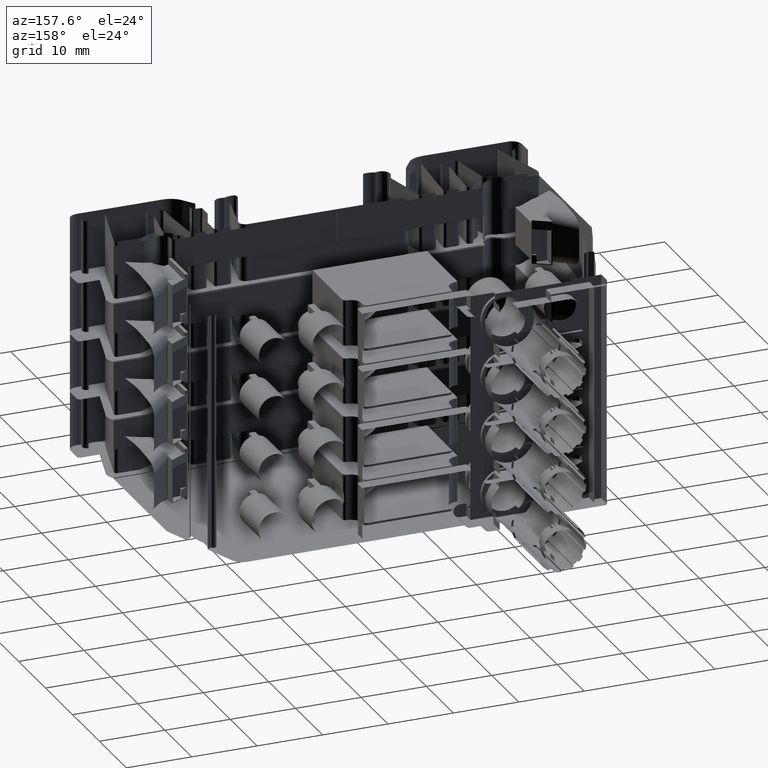
[diagram: clean part render]
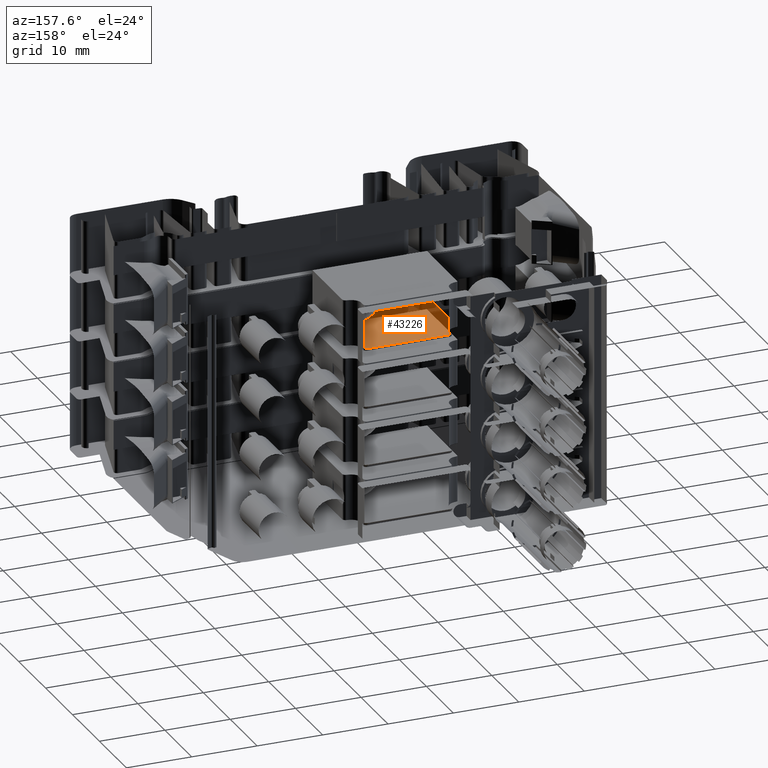
[diagram: same view with one face highlighted and labeled with its STEP entity id]
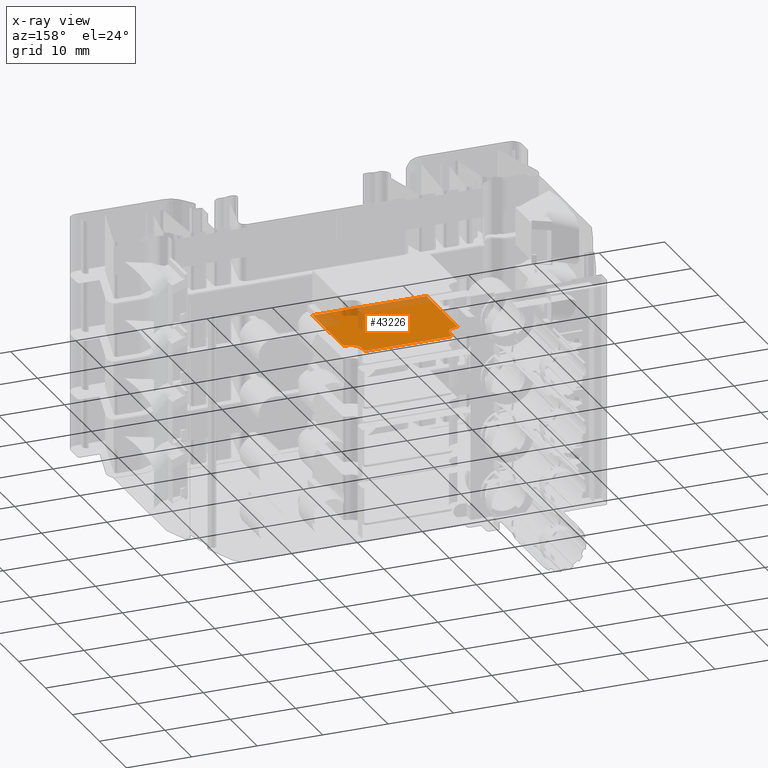
[diagram: x-ray of the same camera — body ghosted, the highlighted face saturated]
A machine part, auxiliary view. The second image highlights one B-rep face of the part: STEP entity #43226.
The next image is the same camera in x-ray: the body ghosted, the highlighted face saturated — about 19% of this face is hidden behind the body in this view.
In plain terms, the highlighted planar face has unit normal (0, 0, -1).
Its self-contained STEP definition (entity closure, byte-faithful):
#780 = CARTESIAN_POINT ( 'NONE',  ( 478.4752094327940900, 140.2842543253054000, 27.90000000000000200 ) ) ;
#4862 = CARTESIAN_POINT ( 'NONE',  ( 478.9752094327940300, 139.1048603657970100, 27.90000000000000200 ) ) ;
#4890 = CARTESIAN_POINT ( 'NONE',  ( 465.9752094327940300, 140.2842543253054000, 27.90000000000000200 ) ) ;
#5010 = CARTESIAN_POINT ( 'NONE',  ( 465.4752094327940300, 139.1048603657970100, 27.90000000000000200 ) ) ;
#5015 = CARTESIAN_POINT ( 'NONE',  ( 478.9752094327940300, 139.7842543253054000, 27.90000000000000200 ) ) ;
#18357 = EDGE_LOOP ( 'NONE', ( #18800, #18789, #18738, #18780, #18777, #18787, #18718, #18788, #18792, #18744, #18689, #18678, #18755, #18790 ) ) ;
#18678 = ORIENTED_EDGE ( 'NONE', *, *, #88631, .T. ) ;
#18689 = ORIENTED_EDGE ( 'NONE', *, *, #88177, .F. ) ;
#18718 = ORIENTED_EDGE ( 'NONE', *, *, #88108, .F. ) ;
#18738 = ORIENTED_EDGE ( 'NONE', *, *, #88643, .T. ) ;
#18744 = ORIENTED_EDGE ( 'NONE', *, *, #88127, .T. ) ;
#18755 = ORIENTED_EDGE ( 'NONE', *, *, #88662, .T. ) ;
#18777 = ORIENTED_EDGE ( 'NONE', *, *, #88623, .T. ) ;
#18780 = ORIENTED_EDGE ( 'NONE', *, *, #88627, .F. ) ;
#18787 = ORIENTED_EDGE ( 'NONE', *, *, #88638, .T. ) ;
#18788 = ORIENTED_EDGE ( 'NONE', *, *, #88095, .T. ) ;
#18789 = ORIENTED_EDGE ( 'NONE', *, *, #88651, .T. ) ;
#18790 = ORIENTED_EDGE ( 'NONE', *, *, #88644, .F. ) ;
#18792 = ORIENTED_EDGE ( 'NONE', *, *, #88096, .T. ) ;
#18800 = ORIENTED_EDGE ( 'NONE', *, *, #88639, .T. ) ;
#23241 = CARTESIAN_POINT ( 'NONE',  ( 478.4752094327940900, 140.2842543253054000, 27.90000000000000200 ) ) ;
#23248 = CARTESIAN_POINT ( 'NONE',  ( 478.5070820039424600, 140.2841866835779900, 27.90000000000000200 ) ) ;
#23257 = CARTESIAN_POINT ( 'NONE',  ( 478.8852223832403800, 140.0741690295757300, 27.90000000000000200 ) ) ;
#23259 = CARTESIAN_POINT ( 'NONE',  ( 478.9109002353936300, 140.0302949144943300, 27.89999999999999900 ) ) ;
#23269 = CARTESIAN_POINT ( 'NONE',  ( 478.5995549358398200, 140.2688025087876200, 27.89999999999999900 ) ) ;
#23271 = CARTESIAN_POINT ( 'NONE',  ( 478.8530725175934900, 140.1135503262722200, 27.90000000000000200 ) ) ;
#23272 = CARTESIAN_POINT ( 'NONE',  ( 478.5539923516515200, 140.2797477210987400, 27.89999999999999500 ) ) ;
#23274 = CARTESIAN_POINT ( 'NONE',  ( 478.7801434349750000, 140.1863224951517000, 27.90000000000000900 ) ) ;
#23277 = CARTESIAN_POINT ( 'NONE',  ( 478.9265805782749200, 140.0000471003544900, 27.89999999999999500 ) ) ;
#23278 = CARTESIAN_POINT ( 'NONE',  ( 478.9752094327940300, 139.7842543253054000, 27.90000000000000200 ) ) ;
#23279 = CARTESIAN_POINT ( 'NONE',  ( 478.9633714427415000, 139.9097051757504500, 27.90000000000000200 ) ) ;
#23284 = CARTESIAN_POINT ( 'NONE',  ( 478.9342866184711600, 139.9829508061703500, 27.90000000000000200 ) ) ;
#23285 = CARTESIAN_POINT ( 'NONE',  ( 478.6296304889609100, 140.2600598672841600, 27.89999999999999900 ) ) ;
#23306 = CARTESIAN_POINT ( 'NONE',  ( 478.6432849607784900, 140.2554525097892500, 27.90000000000000600 ) ) ;
#23307 = CARTESIAN_POINT ( 'NONE',  ( 478.7231440947607600, 140.2239323400261000, 27.90000000000000600 ) ) ;
#23317 = CARTESIAN_POINT ( 'NONE',  ( 478.9750733925643500, 139.8483560574900700, 27.89999999999999500 ) ) ;
#23564 = DIRECTION ( 'NONE',  ( 0.0000000000000000000, 1.000000000000000000, 0.0000000000000000000 ) ) ;
#23584 = LINE ( 'NONE', #23586, #74212 ) ;
#23586 = CARTESIAN_POINT ( 'NONE',  ( 478.9752094327940300, 137.2554713541223900, 27.90000000000000200 ) ) ;
#25276 = CARTESIAN_POINT ( 'NONE',  ( 464.7252094327940900, 137.8058222601203200, 27.90000000000000200 ) ) ;
#28341 = CARTESIAN_POINT ( 'NONE',  ( 465.4752094327940300, 139.7842543253054000, 27.90000000000000200 ) ) ;
#29662 = CARTESIAN_POINT ( 'NONE',  ( 465.4752770745214400, 139.8161268964363200, 27.90000000000000200 ) ) ;
#29701 = CARTESIAN_POINT ( 'NONE',  ( 465.4752094327940300, 139.7842543253054000, 27.90000000000000200 ) ) ;
#29732 = CARTESIAN_POINT ( 'NONE',  ( 465.4906612493118100, 139.9085998283270600, 27.89999999999999900 ) ) ;
#29741 = LINE ( 'NONE', #29770, #75768 ) ;
#29743 = CARTESIAN_POINT ( 'NONE',  ( 465.5731412629506300, 140.0891883274962900, 27.89999999999999500 ) ) ;
#29754 = CARTESIAN_POINT ( 'NONE',  ( 465.4797160370005100, 139.8630372441320700, 27.90000000000000200 ) ) ;
#29765 = CARTESIAN_POINT ( 'NONE',  ( 465.7765129519341900, 140.2433315109825000, 27.89999999999999900 ) ) ;
#29768 = CARTESIAN_POINT ( 'NONE',  ( 465.9752094327940300, 140.2842543253054000, 27.90000000000000200 ) ) ;
#29770 = CARTESIAN_POINT ( 'NONE',  ( 463.7252094327940300, 140.2842543253054000, 27.90000000000000200 ) ) ;
#29789 = DIRECTION ( 'NONE',  ( 1.000000000000000000, 0.0000000000000000000, 0.0000000000000000000 ) ) ;
#29794 = CARTESIAN_POINT ( 'NONE',  ( 465.9111077005886700, 140.2841182850758100, 27.90000000000000600 ) ) ;
#29800 = CARTESIAN_POINT ( 'NONE',  ( 465.4994038908153000, 139.9386753814568500, 27.90000000000000600 ) ) ;
#29807 = CARTESIAN_POINT ( 'NONE',  ( 465.7594166577434300, 140.2356254707820300, 27.89999999999999900 ) ) ;
#29816 = CARTESIAN_POINT ( 'NONE',  ( 465.6852947285211100, 140.1942672757429300, 27.90000000000000900 ) ) ;
#29817 = CARTESIAN_POINT ( 'NONE',  ( 465.7291688436031300, 140.2199451278981700, 27.90000000000000600 ) ) ;
#29821 = CARTESIAN_POINT ( 'NONE',  ( 465.6459134318257000, 140.1621174100998500, 27.89999999999999500 ) ) ;
#29823 = CARTESIAN_POINT ( 'NONE',  ( 465.5040112483151200, 139.9523298532932600, 27.89999999999999900 ) ) ;
#29824 = CARTESIAN_POINT ( 'NONE',  ( 465.8497585823283800, 140.2724163352528400, 27.90000000000000200 ) ) ;
#29831 = CARTESIAN_POINT ( 'NONE',  ( 465.5355314180526400, 140.0321889872587300, 27.89999999999999900 ) ) ;
#29872 = LINE ( 'NONE', #29933, #75727 ) ;
#29876 = DIRECTION ( 'NONE',  ( -0.0000000000000000000, -1.000000000000000000, 0.0000000000000000000 ) ) ;
#29933 = CARTESIAN_POINT ( 'NONE',  ( 465.4752094327940300, 137.2554713541223900, 27.90000000000000200 ) ) ;
#35326 = CARTESIAN_POINT ( 'NONE',  ( 464.4573169139337100, 137.6520726997566400, 27.90000000000000200 ) ) ;
#35356 = CARTESIAN_POINT ( 'NONE',  ( 464.1693169139337000, 137.5642994215256500, 27.90000000000000200 ) ) ;
#36684 = CARTESIAN_POINT ( 'NONE',  ( 463.8612094327940000, 137.5425024254273600, 27.90000000000000200 ) ) ;
#43226 = ADVANCED_FACE ( 'NONE', ( #48739 ), #48749, .T. ) ;
#44624 = AXIS2_PLACEMENT_3D ( 'NONE', #48751, #48731, #48722 ) ;
#48722 = DIRECTION ( 'NONE',  ( -1.000000000000000000, 0.0000000000000000000, -0.0000000000000000000 ) ) ;
#48731 = DIRECTION ( 'NONE',  ( 0.0000000000000000000, 0.0000000000000000000, -1.000000000000000000 ) ) ;
#48739 = FACE_OUTER_BOUND ( 'NONE', #18357, .T. ) ;
#48749 = PLANE ( 'NONE',  #44624 ) ;
#48751 = CARTESIAN_POINT ( 'NONE',  ( 462.4252094327940200, 119.1878730676890000, 27.90000000000000200 ) ) ;
#74212 = VECTOR ( 'NONE', #23564, 1000.000000000000000 ) ;
#75524 = VECTOR ( 'NONE', #83676, 1000.000000000000000 ) ;
#75527 = VECTOR ( 'NONE', #83710, 1000.000000000000000 ) ;
#75579 = VECTOR ( 'NONE', #83656, 1000.000000000000000 ) ;
#75727 = VECTOR ( 'NONE', #29876, 1000.000000000000000 ) ;
#75768 = VECTOR ( 'NONE', #29789, 1000.000000000000000 ) ;
#78160 = CARTESIAN_POINT ( 'NONE',  ( 481.0552094327940200, 126.0068965332545900, 27.89999999999999900 ) ) ;
#78169 = CARTESIAN_POINT ( 'NONE',  ( 479.7252094327940900, 137.8058222601203500, 27.90000000000000200 ) ) ;
#78179 = CARTESIAN_POINT ( 'NONE',  ( 480.5892094327941200, 137.5425024254273600, 27.90000000000000200 ) ) ;
#78182 = CARTESIAN_POINT ( 'NONE',  ( 481.0552094327940200, 137.0436597648619900, 27.90000000000000200 ) ) ;
#78238 = CARTESIAN_POINT ( 'NONE',  ( 463.8612094327940000, 137.5425024254273600, 27.90000000000000200 ) ) ;
#78243 = CARTESIAN_POINT ( 'NONE',  ( 463.5678849438149900, 126.0068965332545900, 27.89999999999999900 ) ) ;
#78246 = CARTESIAN_POINT ( 'NONE',  ( 463.5678849438149900, 137.4216262698789700, 27.90000000000000200 ) ) ;
#78288 = CARTESIAN_POINT ( 'NONE',  ( 464.7252094327940900, 137.8058222601203200, 27.90000000000000200 ) ) ;
#82888 = B_SPLINE_CURVE_WITH_KNOTS ( 'NONE', 3,
 ( #23241, #23248, #23272, #23269, #23285, #23306, #23307, #23274, #23271, #23257, #23259, #23277, #23284, #23279, #23317, #23278 ),
 .UNSPECIFIED., .F., .F.,
 ( 4, 1, 2, 2, 2, 1, 2, 2, 4 ),
 ( 0.0000000000000000000, 0.1250000000002766100, 0.1875000000003057800, 0.2500000000003349500, 0.5000000000003773600, 0.6250000000003270700, 0.6875000000002590200, 0.7500000000001909600, 1.000000000000000000 ),
 .UNSPECIFIED. ) ;
#82917 = B_SPLINE_CURVE_WITH_KNOTS ( 'NONE', 3,
 ( #29701, #29662, #29754, #29732, #29800, #29823, #29831, #29743, #29821, #29816, #29817, #29807, #29765, #29824, #29794, #29768 ),
 .UNSPECIFIED., .F., .F.,
 ( 4, 1, 2, 2, 2, 1, 2, 2, 4 ),
 ( 0.0000000000000000000, 0.1250000000001320900, 0.1875000000001435500, 0.2500000000001550400, 0.5000000000002207100, 0.6250000000002180500, 0.6875000000001885200, 0.7500000000001588700, 1.000000000000000000 ),
 .UNSPECIFIED. ) ;
#83183 = B_SPLINE_CURVE_WITH_KNOTS ( 'NONE', 3,
 ( #83631, #83607, #83602, #83615 ),
 .UNSPECIFIED., .F., .F.,
 ( 4, 4 ),
 ( 0.0000000000000000000, 1.000000000000000000 ),
 .UNSPECIFIED. ) ;
#83212 = B_SPLINE_CURVE_WITH_KNOTS ( 'NONE', 3,
 ( #83708, #83735, #83744, #83804 ),
 .UNSPECIFIED., .F., .F.,
 ( 4, 4 ),
 ( 0.0000000000000000000, 1.000000000000000000 ),
 .UNSPECIFIED. ) ;
#83231 = B_SPLINE_CURVE_WITH_KNOTS ( 'NONE', 3,
 ( #83588, #83628, #83618, #83603, #83636, #83590, #83616, #83605, #83629, #83630, #83619 ),
 .UNSPECIFIED., .F., .F.,
 ( 4, 2, 1, 2, 2, 4 ),
 ( 0.0000000000000000000, 0.4999999999998885300, 0.6249999999998995200, 0.6874999999999161800, 0.7499999999999329400, 1.000000000000000000 ),
 .UNSPECIFIED. ) ;
#83249 = B_SPLINE_CURVE_WITH_KNOTS ( 'NONE', 3,
 ( #83678, #83654, #83648, #83641, #83683, #83673, #83675, #83646, #83651, #83687, #83650 ),
 .UNSPECIFIED., .F., .F.,
 ( 4, 2, 1, 2, 2, 4 ),
 ( 0.0000000000000000000, 0.5000000000000605100, 0.6250000000000548500, 0.6875000000000278700, 0.7500000000000008900, 1.000000000000000000 ),
 .UNSPECIFIED. ) ;
#83296 = B_SPLINE_CURVE_WITH_KNOTS ( 'NONE', 3,
 ( #83658, #83662, #83663, #83681, #83684, #83665 ),
 .UNSPECIFIED., .F., .F.,
 ( 4, 2, 4 ),
 ( 0.0000000000000000000, 0.5000000000000000000, 1.000000000000000000 ),
 .UNSPECIFIED. ) ;
#83319 = B_SPLINE_CURVE_WITH_KNOTS ( 'NONE', 3,
 ( #36684, #35356, #35326, #25276 ),
 .UNSPECIFIED., .F., .F.,
 ( 4, 4 ),
 ( 0.0000000000000000000, 1.000000000000000000 ),
 .UNSPECIFIED. ) ;
#83588 = CARTESIAN_POINT ( 'NONE',  ( 478.9752094327940300, 139.1048603657970100, 27.90000000000000200 ) ) ;
#83590 = CARTESIAN_POINT ( 'NONE',  ( 479.3284949695582200, 138.1372513765059900, 27.90000000000000200 ) ) ;
#83602 = CARTESIAN_POINT ( 'NONE',  ( 463.6492316076626100, 137.4920736635516800, 27.90000000000000200 ) ) ;
#83603 = CARTESIAN_POINT ( 'NONE',  ( 479.2095609562226700, 138.2969823494639700, 27.89999999999999900 ) ) ;
#83605 = CARTESIAN_POINT ( 'NONE',  ( 479.3965333220133400, 138.0620456083562400, 27.90000000000001300 ) ) ;
#83607 = CARTESIAN_POINT ( 'NONE',  ( 463.7538475748430600, 137.5351848813220400, 27.90000000000000200 ) ) ;
#83615 = CARTESIAN_POINT ( 'NONE',  ( 463.5678849438149900, 137.4216262698789700, 27.90000000000000200 ) ) ;
#83616 = CARTESIAN_POINT ( 'NONE',  ( 479.3726075278178200, 138.0873179750536200, 27.90000000000000200 ) ) ;
#83618 = CARTESIAN_POINT ( 'NONE',  ( 479.0426128106966500, 138.5863724311293800, 27.90000000000000200 ) ) ;
#83619 = CARTESIAN_POINT ( 'NONE',  ( 479.7252094327940900, 137.8058222601203500, 27.90000000000000200 ) ) ;
#83628 = CARTESIAN_POINT ( 'NONE',  ( 478.9753951873481700, 138.8367716798904600, 27.89999999999999900 ) ) ;
#83629 = CARTESIAN_POINT ( 'NONE',  ( 479.5108708037760200, 137.9486712031823900, 27.90000000000000600 ) ) ;
#83630 = CARTESIAN_POINT ( 'NONE',  ( 479.6128070085854300, 137.8708217141153800, 27.90000000000000200 ) ) ;
#83631 = CARTESIAN_POINT ( 'NONE',  ( 463.8612094327940000, 137.5425024254273600, 27.90000000000000200 ) ) ;
#83636 = CARTESIAN_POINT ( 'NONE',  ( 479.2650068644571800, 138.2141376324046300, 27.89999999999999500 ) ) ;
#83641 = CARTESIAN_POINT ( 'NONE',  ( 465.3076765563748700, 138.4127156409895700, 27.90000000000000600 ) ) ;
#83642 = LINE ( 'NONE', #83669, #75524 ) ;
#83646 = CARTESIAN_POINT ( 'NONE',  ( 465.4176515595695500, 138.6921068301400600, 27.89999999999999900 ) ) ;
#83648 = CARTESIAN_POINT ( 'NONE',  ( 465.1405314668538700, 138.1234392650266900, 27.90000000000000600 ) ) ;
#83650 = CARTESIAN_POINT ( 'NONE',  ( 465.4752094327940300, 139.1048603657970100, 27.90000000000000200 ) ) ;
#83651 = CARTESIAN_POINT ( 'NONE',  ( 465.4586679337077200, 138.8478131964668000, 27.90000000000000600 ) ) ;
#83654 = CARTESIAN_POINT ( 'NONE',  ( 464.9572881680225000, 137.9400274712614000, 27.90000000000000900 ) ) ;
#83655 = CARTESIAN_POINT ( 'NONE',  ( 463.5678849438149900, 119.1878730676890000, 27.90000000000000200 ) ) ;
#83656 = DIRECTION ( 'NONE',  ( 0.0000000000000000000, 1.000000000000000000, 0.0000000000000000000 ) ) ;
#83658 = CARTESIAN_POINT ( 'NONE',  ( 481.0552094327940200, 137.0436597648619900, 27.90000000000000200 ) ) ;
#83659 = LINE ( 'NONE', #83655, #75579 ) ;
#83662 = CARTESIAN_POINT ( 'NONE',  ( 481.0552094327940200, 137.1688884158716100, 27.90000000000000200 ) ) ;
#83663 = CARTESIAN_POINT ( 'NONE',  ( 481.0060722785180500, 137.2934695112277600, 27.90000000000000600 ) ) ;
#83665 = CARTESIAN_POINT ( 'NONE',  ( 480.5892094327941200, 137.5425024254273600, 27.90000000000000200 ) ) ;
#83669 = CARTESIAN_POINT ( 'NONE',  ( 481.0552094327940200, 119.1878730676890000, 27.90000000000000200 ) ) ;
#83673 = CARTESIAN_POINT ( 'NONE',  ( 465.3865406300569100, 138.5955810043904300, 27.90000000000000600 ) ) ;
#83675 = CARTESIAN_POINT ( 'NONE',  ( 465.4077279450863800, 138.6587503011962200, 27.90000000000000600 ) ) ;
#83676 = DIRECTION ( 'NONE',  ( -0.0000000000000000000, -1.000000000000000000, -0.0000000000000000000 ) ) ;
#83678 = CARTESIAN_POINT ( 'NONE',  ( 464.7252094327940900, 137.8058222601203200, 27.90000000000000200 ) ) ;
#83681 = CARTESIAN_POINT ( 'NONE',  ( 480.8350996233279500, 137.4764919451312200, 27.90000000000000600 ) ) ;
#83683 = CARTESIAN_POINT ( 'NONE',  ( 465.3516992317938200, 138.5021555645850500, 27.90000000000000200 ) ) ;
#83684 = CARTESIAN_POINT ( 'NONE',  ( 480.7141482196914200, 137.5339868771587200, 27.90000000000000600 ) ) ;
#83687 = CARTESIAN_POINT ( 'NONE',  ( 465.4751194665067800, 138.9750172839307000, 27.90000000000000600 ) ) ;
#83693 = LINE ( 'NONE', #83739, #75527 ) ;
#83708 = CARTESIAN_POINT ( 'NONE',  ( 479.7252094327940900, 137.8058222601203500, 27.90000000000000200 ) ) ;
#83710 = DIRECTION ( 'NONE',  ( -1.000000000000000000, 0.0000000000000000000, -0.0000000000000000000 ) ) ;
#83735 = CARTESIAN_POINT ( 'NONE',  ( 479.9931019516541800, 137.6520726997566400, 27.90000000000000200 ) ) ;
#83739 = CARTESIAN_POINT ( 'NONE',  ( 462.4252094327940200, 126.0068965332545900, 27.90000000000000200 ) ) ;
#83744 = CARTESIAN_POINT ( 'NONE',  ( 480.2811019516541900, 137.5642994215256500, 27.90000000000000200 ) ) ;
#83804 = CARTESIAN_POINT ( 'NONE',  ( 480.5892094327941200, 137.5425024254273600, 27.90000000000000200 ) ) ;
#86882 = VERTEX_POINT ( 'NONE', #5015 ) ;
#86898 = VERTEX_POINT ( 'NONE', #4890 ) ;
#86905 = VERTEX_POINT ( 'NONE', #5010 ) ;
#86922 = VERTEX_POINT ( 'NONE', #4862 ) ;
#86932 = VERTEX_POINT ( 'NONE', #780 ) ;
#86943 = VERTEX_POINT ( 'NONE', #28341 ) ;
#88095 = EDGE_CURVE ( 'NONE', #86943, #86898, #82917, .T. ) ;
#88096 = EDGE_CURVE ( 'NONE', #86898, #86932, #29741, .T. ) ;
#88108 = EDGE_CURVE ( 'NONE', #86943, #86905, #29872, .T. ) ;
#88127 = EDGE_CURVE ( 'NONE', #86932, #86882, #82888, .T. ) ;
#88177 = EDGE_CURVE ( 'NONE', #86922, #86882, #23584, .T. ) ;
#88623 = EDGE_CURVE ( 'NONE', #90413, #90443, #83319, .T. ) ;
#88627 = EDGE_CURVE ( 'NONE', #90413, #90425, #83183, .T. ) ;
#88631 = EDGE_CURVE ( 'NONE', #86922, #90393, #83231, .T. ) ;
#88638 = EDGE_CURVE ( 'NONE', #90443, #86905, #83249, .T. ) ;
#88639 = EDGE_CURVE ( 'NONE', #90402, #90392, #83642, .T. ) ;
#88643 = EDGE_CURVE ( 'NONE', #90427, #90425, #83659, .T. ) ;
#88644 = EDGE_CURVE ( 'NONE', #90402, #90398, #83296, .T. ) ;
#88651 = EDGE_CURVE ( 'NONE', #90392, #90427, #83693, .T. ) ;
#88662 = EDGE_CURVE ( 'NONE', #90393, #90398, #83212, .T. ) ;
#90392 = VERTEX_POINT ( 'NONE', #78160 ) ;
#90393 = VERTEX_POINT ( 'NONE', #78169 ) ;
#90398 = VERTEX_POINT ( 'NONE', #78179 ) ;
#90402 = VERTEX_POINT ( 'NONE', #78182 ) ;
#90413 = VERTEX_POINT ( 'NONE', #78238 ) ;
#90425 = VERTEX_POINT ( 'NONE', #78246 ) ;
#90427 = VERTEX_POINT ( 'NONE', #78243 ) ;
#90443 = VERTEX_POINT ( 'NONE', #78288 ) ;